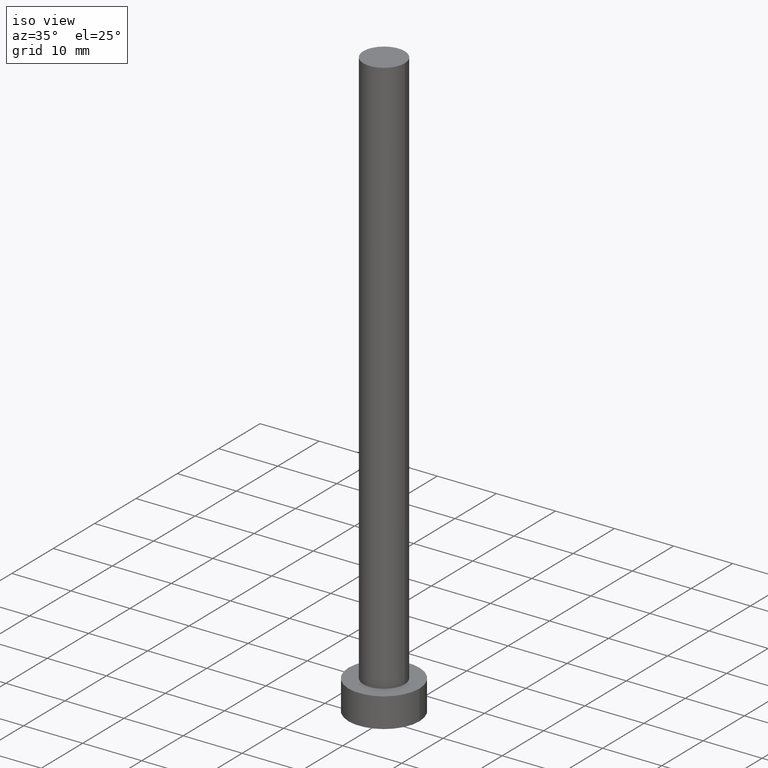
[diagram: clean part render]
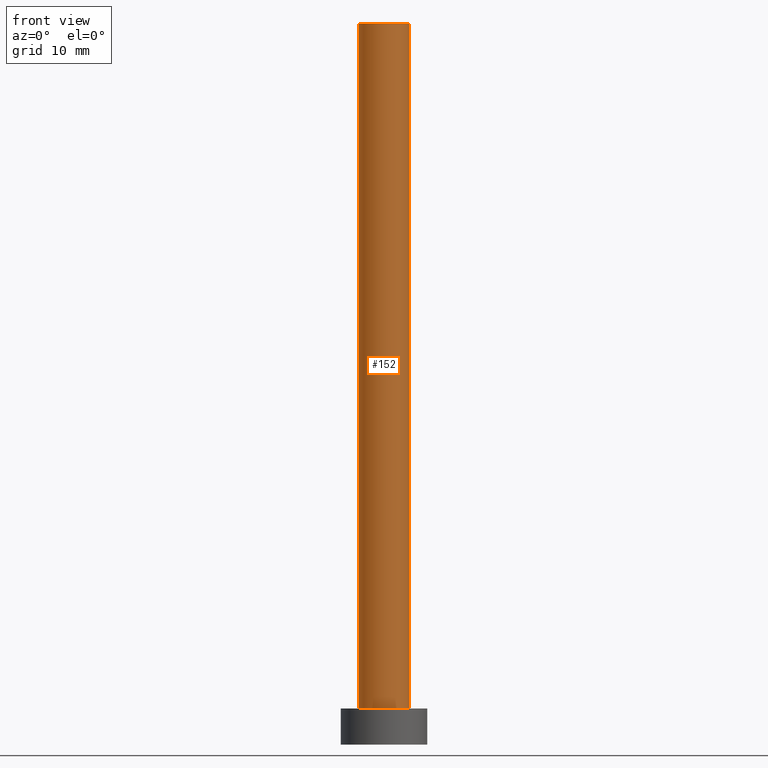
[diagram: tour spotlight — one face highlighted and labeled with its STEP entity id]
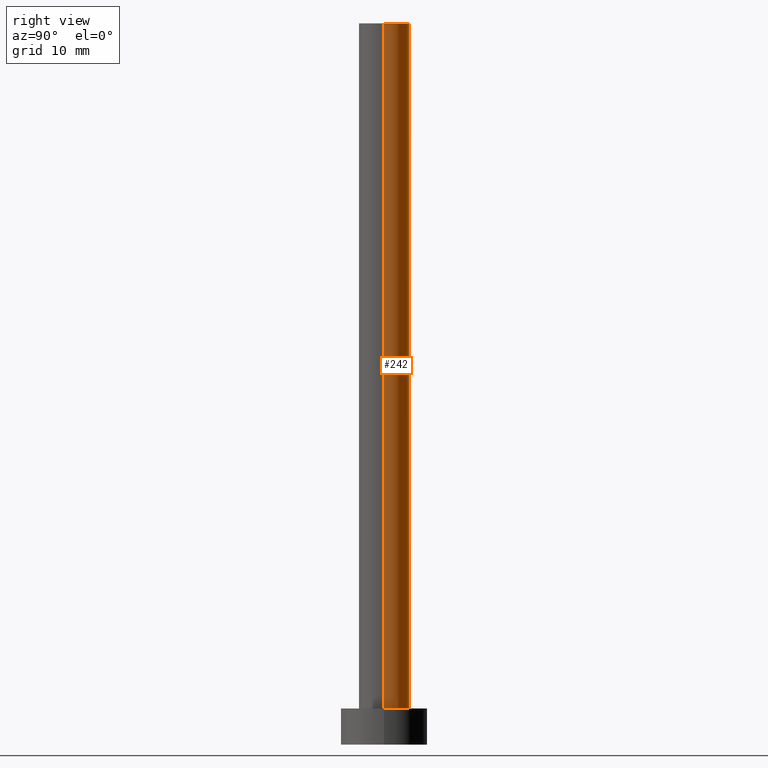
[diagram: tour spotlight — one face highlighted and labeled with its STEP entity id]
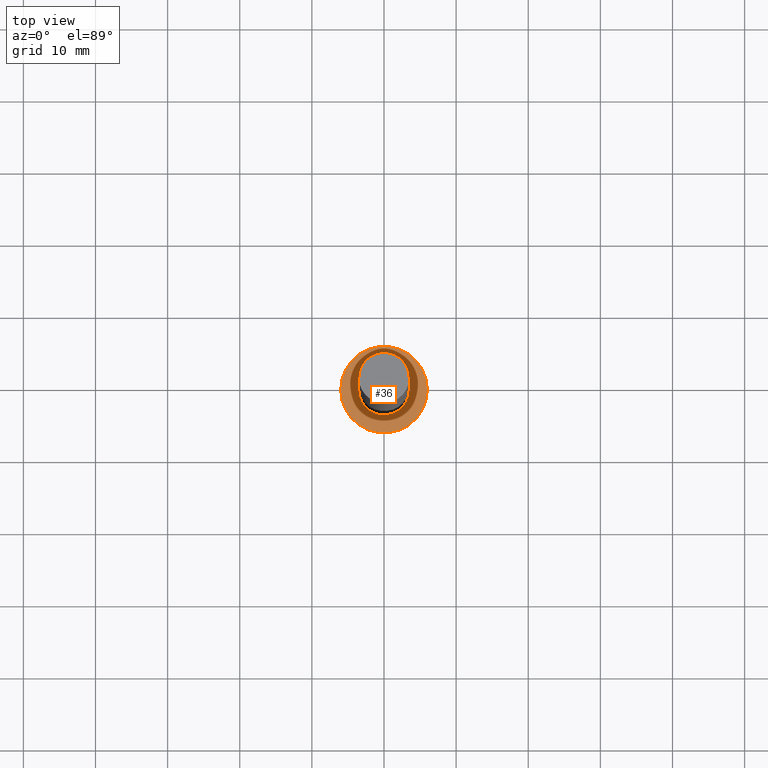
[diagram: tour spotlight — one face highlighted and labeled with its STEP entity id]
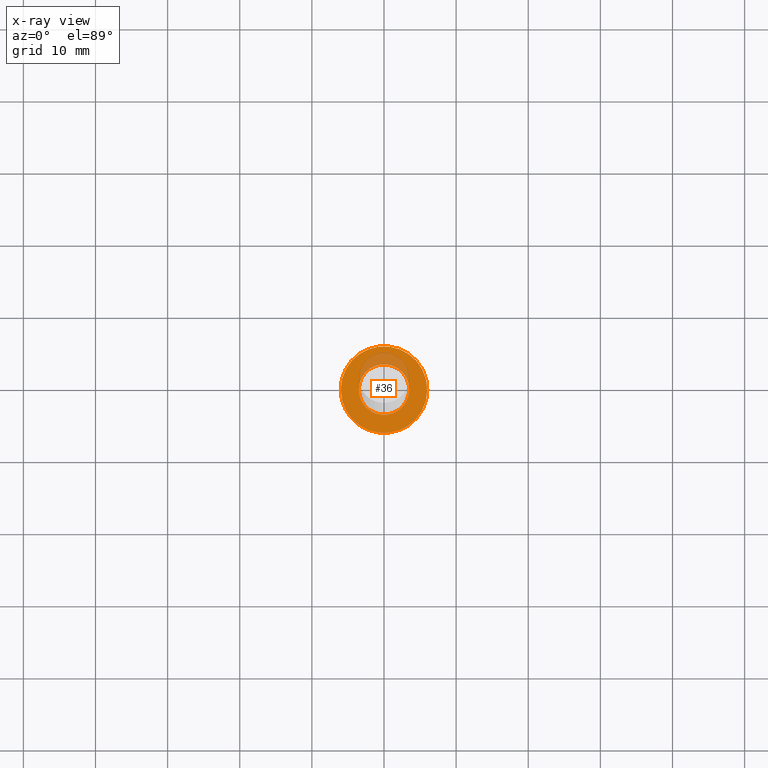
[diagram: x-ray of the same camera — body ghosted, this tour face saturated]
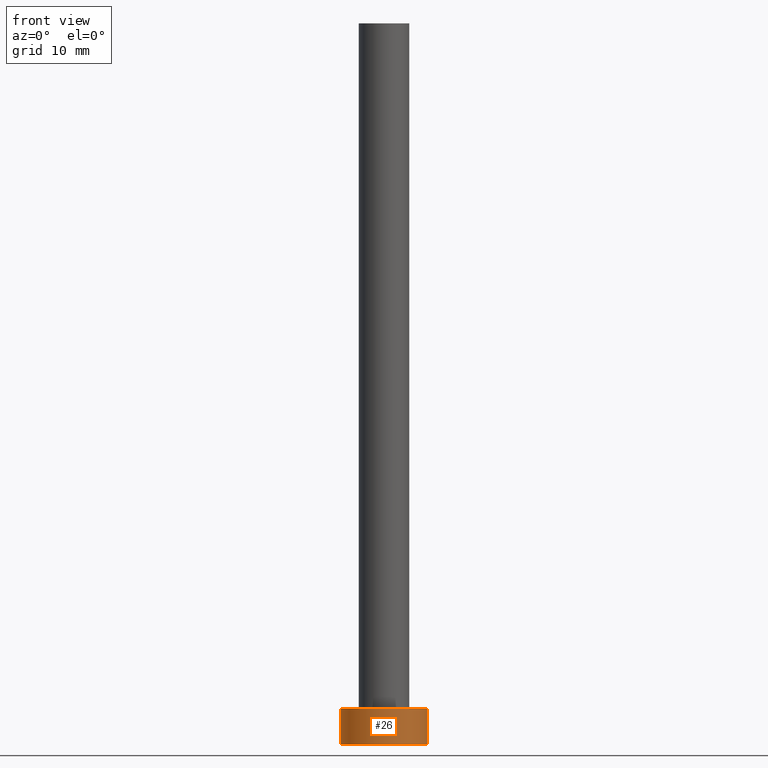
[diagram: tour spotlight — one face highlighted and labeled with its STEP entity id]
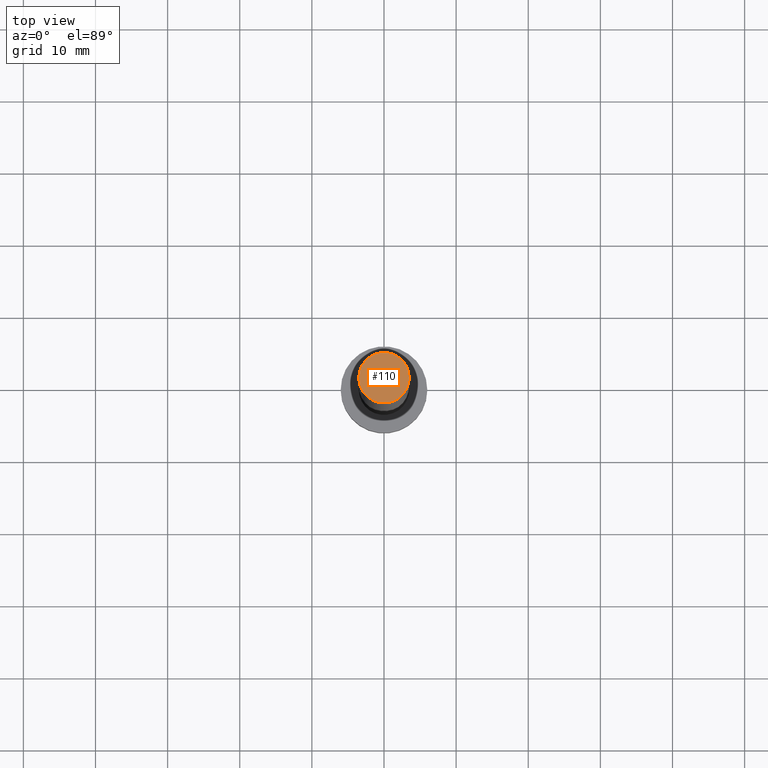
[diagram: tour spotlight — one face highlighted and labeled with its STEP entity id]
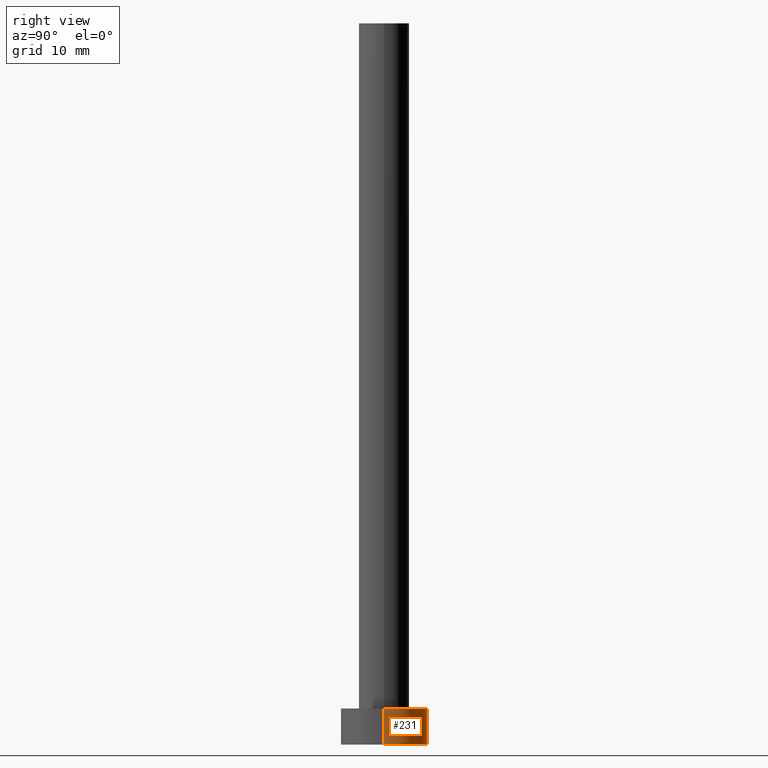
[diagram: tour spotlight — one face highlighted and labeled with its STEP entity id]
A machine part: a face-by-face anatomy tour. The part has 7 B-rep faces; the first image is the clean iso view, then the 6 largest visible faces are spotlighted one at a time (largest first), each with its STEP entity span.

Face 1 — front view, entity #152. In plain terms, the highlighted cylindrical surface (edge-blend (fillet) strip) has radius 3.5 mm, axis along (-0, -0, -1).
Definition (entity closure, byte-faithful):
#1 = LINE ( 'NONE', #19, #107 ) ;
#19 = CARTESIAN_POINT ( 'NONE',  ( 3.500000000000000000, 4.286263797015736595E-16, 100.0000000000000000 ) ) ;
#22 = CARTESIAN_POINT ( 'NONE',  ( 0.000000000000000000, 0.000000000000000000, 100.0000000000000000 ) ) ;
#25 = DIRECTION ( 'NONE',  ( -1.000000000000000000, 0.000000000000000000, 0.000000000000000000 ) ) ;
#28 = VERTEX_POINT ( 'NONE', #211 ) ;
#32 = FACE_OUTER_BOUND ( 'NONE', #146, .T. ) ;
#38 = CARTESIAN_POINT ( 'NONE',  ( 0.000000000000000000, 0.000000000000000000, 100.0000000000000000 ) ) ;
#40 = AXIS2_PLACEMENT_3D ( 'NONE', #38, #116, #25 ) ;
#48 = CIRCLE ( 'NONE', #193, 3.500000000000000000 ) ;
#51 = DIRECTION ( 'NONE',  ( 0.000000000000000000, 0.000000000000000000, 1.000000000000000000 ) ) ;
#56 = DIRECTION ( 'NONE',  ( 1.000000000000000000, 0.000000000000000000, 0.000000000000000000 ) ) ;
#60 = DIRECTION ( 'NONE',  ( 1.000000000000000000, 0.000000000000000000, 0.000000000000000000 ) ) ;
#64 = VECTOR ( 'NONE', #78, 1000.000000000000000 ) ;
#67 = CIRCLE ( 'NONE', #75, 3.500000000000000000 ) ;
#70 = VERTEX_POINT ( 'NONE', #190 ) ;
#75 = AXIS2_PLACEMENT_3D ( 'NONE', #22, #123, #60 ) ;
#77 = CARTESIAN_POINT ( 'NONE',  ( 0.000000000000000000, 0.000000000000000000, 5.000000000000000000 ) ) ;
#78 = DIRECTION ( 'NONE',  ( -0.000000000000000000, -0.000000000000000000, -1.000000000000000000 ) ) ;
#95 = ORIENTED_EDGE ( 'NONE', *, *, #186, .F. ) ;
#99 = CARTESIAN_POINT ( 'NONE',  ( -3.500000000000000000, 0.000000000000000000, 100.0000000000000000 ) ) ;
#101 = LINE ( 'NONE', #99, #64 ) ;
#107 = VECTOR ( 'NONE', #201, 1000.000000000000000 ) ;
#109 = ORIENTED_EDGE ( 'NONE', *, *, #127, .T. ) ;
#113 = CYLINDRICAL_SURFACE ( 'NONE', #40, 3.500000000000000000 ) ;
#116 = DIRECTION ( 'NONE',  ( -0.000000000000000000, -0.000000000000000000, -1.000000000000000000 ) ) ;
#121 = CARTESIAN_POINT ( 'NONE',  ( -3.500000000000000000, 0.000000000000000000, 100.0000000000000000 ) ) ;
#123 = DIRECTION ( 'NONE',  ( 0.000000000000000000, 0.000000000000000000, 1.000000000000000000 ) ) ;
#127 = EDGE_CURVE ( 'NONE', #70, #28, #48, .T. ) ;
#146 = EDGE_LOOP ( 'NONE', ( #245, #95, #227, #109 ) ) ;
#152 = ADVANCED_FACE ( 'NONE', ( #32 ), #113, .T. ) ;
#158 = VERTEX_POINT ( 'NONE', #121 ) ;
#186 = EDGE_CURVE ( 'NONE', #158, #240, #67, .T. ) ;
#190 = CARTESIAN_POINT ( 'NONE',  ( -3.500000000000000000, 0.000000000000000000, 5.000000000000000000 ) ) ;
#193 = AXIS2_PLACEMENT_3D ( 'NONE', #77, #51, #56 ) ;
#198 = CARTESIAN_POINT ( 'NONE',  ( 3.500000000000000000, 4.286263797015736595E-16, 100.0000000000000000 ) ) ;
#201 = DIRECTION ( 'NONE',  ( -0.000000000000000000, -0.000000000000000000, -1.000000000000000000 ) ) ;
#211 = CARTESIAN_POINT ( 'NONE',  ( 3.500000000000000000, 4.286263797015736595E-16, 5.000000000000000000 ) ) ;
#227 = ORIENTED_EDGE ( 'NONE', *, *, #232, .T. ) ;
#232 = EDGE_CURVE ( 'NONE', #158, #70, #101, .T. ) ;
#240 = VERTEX_POINT ( 'NONE', #198 ) ;
#245 = ORIENTED_EDGE ( 'NONE', *, *, #252, .F. ) ;
#252 = EDGE_CURVE ( 'NONE', #240, #28, #1, .T. ) ;

Face 2 — right view, entity #242. In plain terms, the highlighted cylindrical surface (edge-blend (fillet) strip) has radius 3.5 mm, axis along (-0, -0, -1).
Definition (entity closure, byte-faithful):
#1 = LINE ( 'NONE', #19, #107 ) ;
#4 = DIRECTION ( 'NONE',  ( -0.000000000000000000, -0.000000000000000000, -1.000000000000000000 ) ) ;
#19 = CARTESIAN_POINT ( 'NONE',  ( 3.500000000000000000, 4.286263797015736595E-16, 100.0000000000000000 ) ) ;
#21 = EDGE_CURVE ( 'NONE', #28, #70, #115, .T. ) ;
#28 = VERTEX_POINT ( 'NONE', #211 ) ;
#50 = ORIENTED_EDGE ( 'NONE', *, *, #21, .T. ) ;
#64 = VECTOR ( 'NONE', #78, 1000.000000000000000 ) ;
#70 = VERTEX_POINT ( 'NONE', #190 ) ;
#74 = AXIS2_PLACEMENT_3D ( 'NONE', #194, #228, #176 ) ;
#78 = DIRECTION ( 'NONE',  ( -0.000000000000000000, -0.000000000000000000, -1.000000000000000000 ) ) ;
#99 = CARTESIAN_POINT ( 'NONE',  ( -3.500000000000000000, 0.000000000000000000, 100.0000000000000000 ) ) ;
#100 = CIRCLE ( 'NONE', #192, 3.500000000000000000 ) ;
#101 = LINE ( 'NONE', #99, #64 ) ;
#104 = CARTESIAN_POINT ( 'NONE',  ( 0.000000000000000000, 0.000000000000000000, 100.0000000000000000 ) ) ;
#107 = VECTOR ( 'NONE', #201, 1000.000000000000000 ) ;
#115 = CIRCLE ( 'NONE', #74, 3.500000000000000000 ) ;
#117 = EDGE_CURVE ( 'NONE', #240, #158, #100, .T. ) ;
#121 = CARTESIAN_POINT ( 'NONE',  ( -3.500000000000000000, 0.000000000000000000, 100.0000000000000000 ) ) ;
#130 = AXIS2_PLACEMENT_3D ( 'NONE', #104, #4, #197 ) ;
#135 = ORIENTED_EDGE ( 'NONE', *, *, #252, .T. ) ;
#158 = VERTEX_POINT ( 'NONE', #121 ) ;
#166 = ORIENTED_EDGE ( 'NONE', *, *, #232, .F. ) ;
#173 = DIRECTION ( 'NONE',  ( 0.000000000000000000, 0.000000000000000000, 1.000000000000000000 ) ) ;
#176 = DIRECTION ( 'NONE',  ( 1.000000000000000000, 0.000000000000000000, 0.000000000000000000 ) ) ;
#178 = EDGE_LOOP ( 'NONE', ( #250, #135, #50, #166 ) ) ;
#182 = CYLINDRICAL_SURFACE ( 'NONE', #130, 3.500000000000000000 ) ;
#190 = CARTESIAN_POINT ( 'NONE',  ( -3.500000000000000000, 0.000000000000000000, 5.000000000000000000 ) ) ;
#192 = AXIS2_PLACEMENT_3D ( 'NONE', #210, #173, #230 ) ;
#194 = CARTESIAN_POINT ( 'NONE',  ( 0.000000000000000000, 0.000000000000000000, 5.000000000000000000 ) ) ;
#197 = DIRECTION ( 'NONE',  ( -1.000000000000000000, 0.000000000000000000, 0.000000000000000000 ) ) ;
#198 = CARTESIAN_POINT ( 'NONE',  ( 3.500000000000000000, 4.286263797015736595E-16, 100.0000000000000000 ) ) ;
#201 = DIRECTION ( 'NONE',  ( -0.000000000000000000, -0.000000000000000000, -1.000000000000000000 ) ) ;
#210 = CARTESIAN_POINT ( 'NONE',  ( 0.000000000000000000, 0.000000000000000000, 100.0000000000000000 ) ) ;
#211 = CARTESIAN_POINT ( 'NONE',  ( 3.500000000000000000, 4.286263797015736595E-16, 5.000000000000000000 ) ) ;
#214 = FACE_OUTER_BOUND ( 'NONE', #178, .T. ) ;
#228 = DIRECTION ( 'NONE',  ( 0.000000000000000000, 0.000000000000000000, 1.000000000000000000 ) ) ;
#230 = DIRECTION ( 'NONE',  ( 1.000000000000000000, 0.000000000000000000, 0.000000000000000000 ) ) ;
#232 = EDGE_CURVE ( 'NONE', #158, #70, #101, .T. ) ;
#240 = VERTEX_POINT ( 'NONE', #198 ) ;
#242 = ADVANCED_FACE ( 'NONE', ( #214 ), #182, .T. ) ;
#250 = ORIENTED_EDGE ( 'NONE', *, *, #117, .F. ) ;
#252 = EDGE_CURVE ( 'NONE', #240, #28, #1, .T. ) ;

Face 3 — top view, entity #36. An x-ray twin of the same camera follows (body ghosted, this face saturated) — the face is partly hidden behind the body. In plain terms, the highlighted planar face has unit normal (0, 0, 1).
Definition (entity closure, byte-faithful):
#8 = EDGE_LOOP ( 'NONE', ( #18, #71 ) ) ;
#11 = PLANE ( 'NONE',  #137 ) ;
#12 = AXIS2_PLACEMENT_3D ( 'NONE', #114, #94, #251 ) ;
#18 = ORIENTED_EDGE ( 'NONE', *, *, #102, .T. ) ;
#21 = EDGE_CURVE ( 'NONE', #28, #70, #115, .T. ) ;
#28 = VERTEX_POINT ( 'NONE', #211 ) ;
#33 = AXIS2_PLACEMENT_3D ( 'NONE', #199, #200, #160 ) ;
#35 = FACE_BOUND ( 'NONE', #187, .T. ) ;
#36 = ADVANCED_FACE ( 'NONE', ( #35, #39 ), #11, .T. ) ;
#39 = FACE_OUTER_BOUND ( 'NONE', #8, .T. ) ;
#48 = CIRCLE ( 'NONE', #193, 3.500000000000000000 ) ;
#51 = DIRECTION ( 'NONE',  ( 0.000000000000000000, 0.000000000000000000, 1.000000000000000000 ) ) ;
#56 = DIRECTION ( 'NONE',  ( 1.000000000000000000, 0.000000000000000000, 0.000000000000000000 ) ) ;
#65 = ORIENTED_EDGE ( 'NONE', *, *, #127, .F. ) ;
#70 = VERTEX_POINT ( 'NONE', #190 ) ;
#71 = ORIENTED_EDGE ( 'NONE', *, *, #202, .T. ) ;
#74 = AXIS2_PLACEMENT_3D ( 'NONE', #194, #228, #176 ) ;
#77 = CARTESIAN_POINT ( 'NONE',  ( 0.000000000000000000, 0.000000000000000000, 5.000000000000000000 ) ) ;
#82 = CARTESIAN_POINT ( 'NONE',  ( -6.000000000000000888, 0.000000000000000000, 5.000000000000000000 ) ) ;
#86 = ORIENTED_EDGE ( 'NONE', *, *, #21, .F. ) ;
#94 = DIRECTION ( 'NONE',  ( 0.000000000000000000, 0.000000000000000000, 1.000000000000000000 ) ) ;
#96 = CIRCLE ( 'NONE', #12, 6.000000000000000888 ) ;
#102 = EDGE_CURVE ( 'NONE', #243, #171, #96, .T. ) ;
#114 = CARTESIAN_POINT ( 'NONE',  ( 0.000000000000000000, 0.000000000000000000, 5.000000000000000000 ) ) ;
#115 = CIRCLE ( 'NONE', #74, 3.500000000000000000 ) ;
#127 = EDGE_CURVE ( 'NONE', #70, #28, #48, .T. ) ;
#137 = AXIS2_PLACEMENT_3D ( 'NONE', #174, #233, #248 ) ;
#144 = CARTESIAN_POINT ( 'NONE',  ( 6.000000000000000888, 7.347880794884120722E-16, 5.000000000000000000 ) ) ;
#160 = DIRECTION ( 'NONE',  ( 1.000000000000000000, 0.000000000000000000, 0.000000000000000000 ) ) ;
#171 = VERTEX_POINT ( 'NONE', #144 ) ;
#174 = CARTESIAN_POINT ( 'NONE',  ( 0.000000000000000000, 0.000000000000000000, 5.000000000000000000 ) ) ;
#176 = DIRECTION ( 'NONE',  ( 1.000000000000000000, 0.000000000000000000, 0.000000000000000000 ) ) ;
#187 = EDGE_LOOP ( 'NONE', ( #65, #86 ) ) ;
#190 = CARTESIAN_POINT ( 'NONE',  ( -3.500000000000000000, 0.000000000000000000, 5.000000000000000000 ) ) ;
#193 = AXIS2_PLACEMENT_3D ( 'NONE', #77, #51, #56 ) ;
#194 = CARTESIAN_POINT ( 'NONE',  ( 0.000000000000000000, 0.000000000000000000, 5.000000000000000000 ) ) ;
#199 = CARTESIAN_POINT ( 'NONE',  ( 0.000000000000000000, 0.000000000000000000, 5.000000000000000000 ) ) ;
#200 = DIRECTION ( 'NONE',  ( 0.000000000000000000, 0.000000000000000000, 1.000000000000000000 ) ) ;
#202 = EDGE_CURVE ( 'NONE', #171, #243, #203, .T. ) ;
#203 = CIRCLE ( 'NONE', #33, 6.000000000000000888 ) ;
#211 = CARTESIAN_POINT ( 'NONE',  ( 3.500000000000000000, 4.286263797015736595E-16, 5.000000000000000000 ) ) ;
#228 = DIRECTION ( 'NONE',  ( 0.000000000000000000, 0.000000000000000000, 1.000000000000000000 ) ) ;
#233 = DIRECTION ( 'NONE',  ( 0.000000000000000000, 0.000000000000000000, 1.000000000000000000 ) ) ;
#243 = VERTEX_POINT ( 'NONE', #82 ) ;
#248 = DIRECTION ( 'NONE',  ( 1.000000000000000000, 0.000000000000000000, -0.000000000000000000 ) ) ;
#251 = DIRECTION ( 'NONE',  ( 1.000000000000000000, 0.000000000000000000, 0.000000000000000000 ) ) ;

Face 4 — front view, entity #26. In plain terms, the highlighted cylindrical surface (partial cylindrical patch) has radius 6 mm, axis along (-0, -0, -1).
Definition (entity closure, byte-faithful):
#2 = EDGE_CURVE ( 'NONE', #10, #44, #57, .T. ) ;
#7 = LINE ( 'NONE', #237, #73 ) ;
#10 = VERTEX_POINT ( 'NONE', #253 ) ;
#12 = AXIS2_PLACEMENT_3D ( 'NONE', #114, #94, #251 ) ;
#15 = DIRECTION ( 'NONE',  ( 1.000000000000000000, 0.000000000000000000, 0.000000000000000000 ) ) ;
#24 = ORIENTED_EDGE ( 'NONE', *, *, #2, .T. ) ;
#26 = ADVANCED_FACE ( 'NONE', ( #205 ), #30, .T. ) ;
#30 = CYLINDRICAL_SURFACE ( 'NONE', #204, 6.000000000000000888 ) ;
#41 = DIRECTION ( 'NONE',  ( -0.000000000000000000, -0.000000000000000000, -1.000000000000000000 ) ) ;
#42 = CARTESIAN_POINT ( 'NONE',  ( -6.000000000000000888, 0.000000000000000000, 5.000000000000000000 ) ) ;
#43 = LINE ( 'NONE', #42, #68 ) ;
#44 = VERTEX_POINT ( 'NONE', #134 ) ;
#54 = DIRECTION ( 'NONE',  ( -0.000000000000000000, -0.000000000000000000, -1.000000000000000000 ) ) ;
#57 = CIRCLE ( 'NONE', #120, 6.000000000000000888 ) ;
#68 = VECTOR ( 'NONE', #41, 1000.000000000000000 ) ;
#69 = ORIENTED_EDGE ( 'NONE', *, *, #156, .T. ) ;
#73 = VECTOR ( 'NONE', #162, 1000.000000000000000 ) ;
#76 = DIRECTION ( 'NONE',  ( -1.000000000000000000, 0.000000000000000000, 0.000000000000000000 ) ) ;
#82 = CARTESIAN_POINT ( 'NONE',  ( -6.000000000000000888, 0.000000000000000000, 5.000000000000000000 ) ) ;
#88 = ORIENTED_EDGE ( 'NONE', *, *, #102, .F. ) ;
#94 = DIRECTION ( 'NONE',  ( 0.000000000000000000, 0.000000000000000000, 1.000000000000000000 ) ) ;
#96 = CIRCLE ( 'NONE', #12, 6.000000000000000888 ) ;
#102 = EDGE_CURVE ( 'NONE', #243, #171, #96, .T. ) ;
#114 = CARTESIAN_POINT ( 'NONE',  ( 0.000000000000000000, 0.000000000000000000, 5.000000000000000000 ) ) ;
#120 = AXIS2_PLACEMENT_3D ( 'NONE', #191, #179, #15 ) ;
#124 = EDGE_LOOP ( 'NONE', ( #149, #88, #69, #24 ) ) ;
#134 = CARTESIAN_POINT ( 'NONE',  ( 6.000000000000000888, 7.347880794884120722E-16, 0.000000000000000000 ) ) ;
#144 = CARTESIAN_POINT ( 'NONE',  ( 6.000000000000000888, 7.347880794884120722E-16, 5.000000000000000000 ) ) ;
#149 = ORIENTED_EDGE ( 'NONE', *, *, #170, .F. ) ;
#156 = EDGE_CURVE ( 'NONE', #243, #10, #43, .T. ) ;
#162 = DIRECTION ( 'NONE',  ( -0.000000000000000000, -0.000000000000000000, -1.000000000000000000 ) ) ;
#170 = EDGE_CURVE ( 'NONE', #171, #44, #7, .T. ) ;
#171 = VERTEX_POINT ( 'NONE', #144 ) ;
#179 = DIRECTION ( 'NONE',  ( 0.000000000000000000, 0.000000000000000000, 1.000000000000000000 ) ) ;
#191 = CARTESIAN_POINT ( 'NONE',  ( 0.000000000000000000, 0.000000000000000000, 0.000000000000000000 ) ) ;
#204 = AXIS2_PLACEMENT_3D ( 'NONE', #255, #54, #76 ) ;
#205 = FACE_OUTER_BOUND ( 'NONE', #124, .T. ) ;
#237 = CARTESIAN_POINT ( 'NONE',  ( 6.000000000000000888, 7.347880794884120722E-16, 5.000000000000000000 ) ) ;
#243 = VERTEX_POINT ( 'NONE', #82 ) ;
#251 = DIRECTION ( 'NONE',  ( 1.000000000000000000, 0.000000000000000000, 0.000000000000000000 ) ) ;
#253 = CARTESIAN_POINT ( 'NONE',  ( -6.000000000000000888, 0.000000000000000000, 0.000000000000000000 ) ) ;
#255 = CARTESIAN_POINT ( 'NONE',  ( 0.000000000000000000, 0.000000000000000000, 5.000000000000000000 ) ) ;

Face 5 — top view, entity #110. In plain terms, the highlighted planar face has unit normal (0, 0, 1).
Definition (entity closure, byte-faithful):
#14 = PLANE ( 'NONE',  #236 ) ;
#22 = CARTESIAN_POINT ( 'NONE',  ( 0.000000000000000000, 0.000000000000000000, 100.0000000000000000 ) ) ;
#47 = ORIENTED_EDGE ( 'NONE', *, *, #186, .T. ) ;
#60 = DIRECTION ( 'NONE',  ( 1.000000000000000000, 0.000000000000000000, 0.000000000000000000 ) ) ;
#67 = CIRCLE ( 'NONE', #75, 3.500000000000000000 ) ;
#75 = AXIS2_PLACEMENT_3D ( 'NONE', #22, #123, #60 ) ;
#98 = DIRECTION ( 'NONE',  ( 0.000000000000000000, 0.000000000000000000, 1.000000000000000000 ) ) ;
#100 = CIRCLE ( 'NONE', #192, 3.500000000000000000 ) ;
#110 = ADVANCED_FACE ( 'NONE', ( #119 ), #14, .T. ) ;
#117 = EDGE_CURVE ( 'NONE', #240, #158, #100, .T. ) ;
#119 = FACE_OUTER_BOUND ( 'NONE', #140, .T. ) ;
#121 = CARTESIAN_POINT ( 'NONE',  ( -3.500000000000000000, 0.000000000000000000, 100.0000000000000000 ) ) ;
#123 = DIRECTION ( 'NONE',  ( 0.000000000000000000, 0.000000000000000000, 1.000000000000000000 ) ) ;
#136 = CARTESIAN_POINT ( 'NONE',  ( 0.000000000000000000, 0.000000000000000000, 100.0000000000000000 ) ) ;
#140 = EDGE_LOOP ( 'NONE', ( #47, #157 ) ) ;
#155 = DIRECTION ( 'NONE',  ( 1.000000000000000000, 0.000000000000000000, -0.000000000000000000 ) ) ;
#157 = ORIENTED_EDGE ( 'NONE', *, *, #117, .T. ) ;
#158 = VERTEX_POINT ( 'NONE', #121 ) ;
#173 = DIRECTION ( 'NONE',  ( 0.000000000000000000, 0.000000000000000000, 1.000000000000000000 ) ) ;
#186 = EDGE_CURVE ( 'NONE', #158, #240, #67, .T. ) ;
#192 = AXIS2_PLACEMENT_3D ( 'NONE', #210, #173, #230 ) ;
#198 = CARTESIAN_POINT ( 'NONE',  ( 3.500000000000000000, 4.286263797015736595E-16, 100.0000000000000000 ) ) ;
#210 = CARTESIAN_POINT ( 'NONE',  ( 0.000000000000000000, 0.000000000000000000, 100.0000000000000000 ) ) ;
#230 = DIRECTION ( 'NONE',  ( 1.000000000000000000, 0.000000000000000000, 0.000000000000000000 ) ) ;
#236 = AXIS2_PLACEMENT_3D ( 'NONE', #136, #98, #155 ) ;
#240 = VERTEX_POINT ( 'NONE', #198 ) ;

Face 6 — right view, entity #231. In plain terms, the highlighted cylindrical surface (partial cylindrical patch) has radius 6 mm, axis along (-0, -0, -1).
Definition (entity closure, byte-faithful):
#7 = LINE ( 'NONE', #237, #73 ) ;
#10 = VERTEX_POINT ( 'NONE', #253 ) ;
#16 = AXIS2_PLACEMENT_3D ( 'NONE', #103, #141, #213 ) ;
#17 = CARTESIAN_POINT ( 'NONE',  ( 0.000000000000000000, 0.000000000000000000, 0.000000000000000000 ) ) ;
#33 = AXIS2_PLACEMENT_3D ( 'NONE', #199, #200, #160 ) ;
#37 = AXIS2_PLACEMENT_3D ( 'NONE', #17, #207, #226 ) ;
#41 = DIRECTION ( 'NONE',  ( -0.000000000000000000, -0.000000000000000000, -1.000000000000000000 ) ) ;
#42 = CARTESIAN_POINT ( 'NONE',  ( -6.000000000000000888, 0.000000000000000000, 5.000000000000000000 ) ) ;
#43 = LINE ( 'NONE', #42, #68 ) ;
#44 = VERTEX_POINT ( 'NONE', #134 ) ;
#68 = VECTOR ( 'NONE', #41, 1000.000000000000000 ) ;
#73 = VECTOR ( 'NONE', #162, 1000.000000000000000 ) ;
#80 = CYLINDRICAL_SURFACE ( 'NONE', #16, 6.000000000000000888 ) ;
#82 = CARTESIAN_POINT ( 'NONE',  ( -6.000000000000000888, 0.000000000000000000, 5.000000000000000000 ) ) ;
#103 = CARTESIAN_POINT ( 'NONE',  ( 0.000000000000000000, 0.000000000000000000, 5.000000000000000000 ) ) ;
#133 = ORIENTED_EDGE ( 'NONE', *, *, #170, .T. ) ;
#134 = CARTESIAN_POINT ( 'NONE',  ( 6.000000000000000888, 7.347880794884120722E-16, 0.000000000000000000 ) ) ;
#139 = EDGE_CURVE ( 'NONE', #44, #10, #151, .T. ) ;
#141 = DIRECTION ( 'NONE',  ( -0.000000000000000000, -0.000000000000000000, -1.000000000000000000 ) ) ;
#144 = CARTESIAN_POINT ( 'NONE',  ( 6.000000000000000888, 7.347880794884120722E-16, 5.000000000000000000 ) ) ;
#151 = CIRCLE ( 'NONE', #37, 6.000000000000000888 ) ;
#153 = EDGE_LOOP ( 'NONE', ( #208, #133, #188, #168 ) ) ;
#156 = EDGE_CURVE ( 'NONE', #243, #10, #43, .T. ) ;
#160 = DIRECTION ( 'NONE',  ( 1.000000000000000000, 0.000000000000000000, 0.000000000000000000 ) ) ;
#162 = DIRECTION ( 'NONE',  ( -0.000000000000000000, -0.000000000000000000, -1.000000000000000000 ) ) ;
#168 = ORIENTED_EDGE ( 'NONE', *, *, #156, .F. ) ;
#170 = EDGE_CURVE ( 'NONE', #171, #44, #7, .T. ) ;
#171 = VERTEX_POINT ( 'NONE', #144 ) ;
#188 = ORIENTED_EDGE ( 'NONE', *, *, #139, .T. ) ;
#199 = CARTESIAN_POINT ( 'NONE',  ( 0.000000000000000000, 0.000000000000000000, 5.000000000000000000 ) ) ;
#200 = DIRECTION ( 'NONE',  ( 0.000000000000000000, 0.000000000000000000, 1.000000000000000000 ) ) ;
#202 = EDGE_CURVE ( 'NONE', #171, #243, #203, .T. ) ;
#203 = CIRCLE ( 'NONE', #33, 6.000000000000000888 ) ;
#207 = DIRECTION ( 'NONE',  ( 0.000000000000000000, 0.000000000000000000, 1.000000000000000000 ) ) ;
#208 = ORIENTED_EDGE ( 'NONE', *, *, #202, .F. ) ;
#213 = DIRECTION ( 'NONE',  ( -1.000000000000000000, 0.000000000000000000, 0.000000000000000000 ) ) ;
#226 = DIRECTION ( 'NONE',  ( 1.000000000000000000, 0.000000000000000000, 0.000000000000000000 ) ) ;
#231 = ADVANCED_FACE ( 'NONE', ( #234 ), #80, .T. ) ;
#234 = FACE_OUTER_BOUND ( 'NONE', #153, .T. ) ;
#237 = CARTESIAN_POINT ( 'NONE',  ( 6.000000000000000888, 7.347880794884120722E-16, 5.000000000000000000 ) ) ;
#243 = VERTEX_POINT ( 'NONE', #82 ) ;
#253 = CARTESIAN_POINT ( 'NONE',  ( -6.000000000000000888, 0.000000000000000000, 0.000000000000000000 ) ) ;